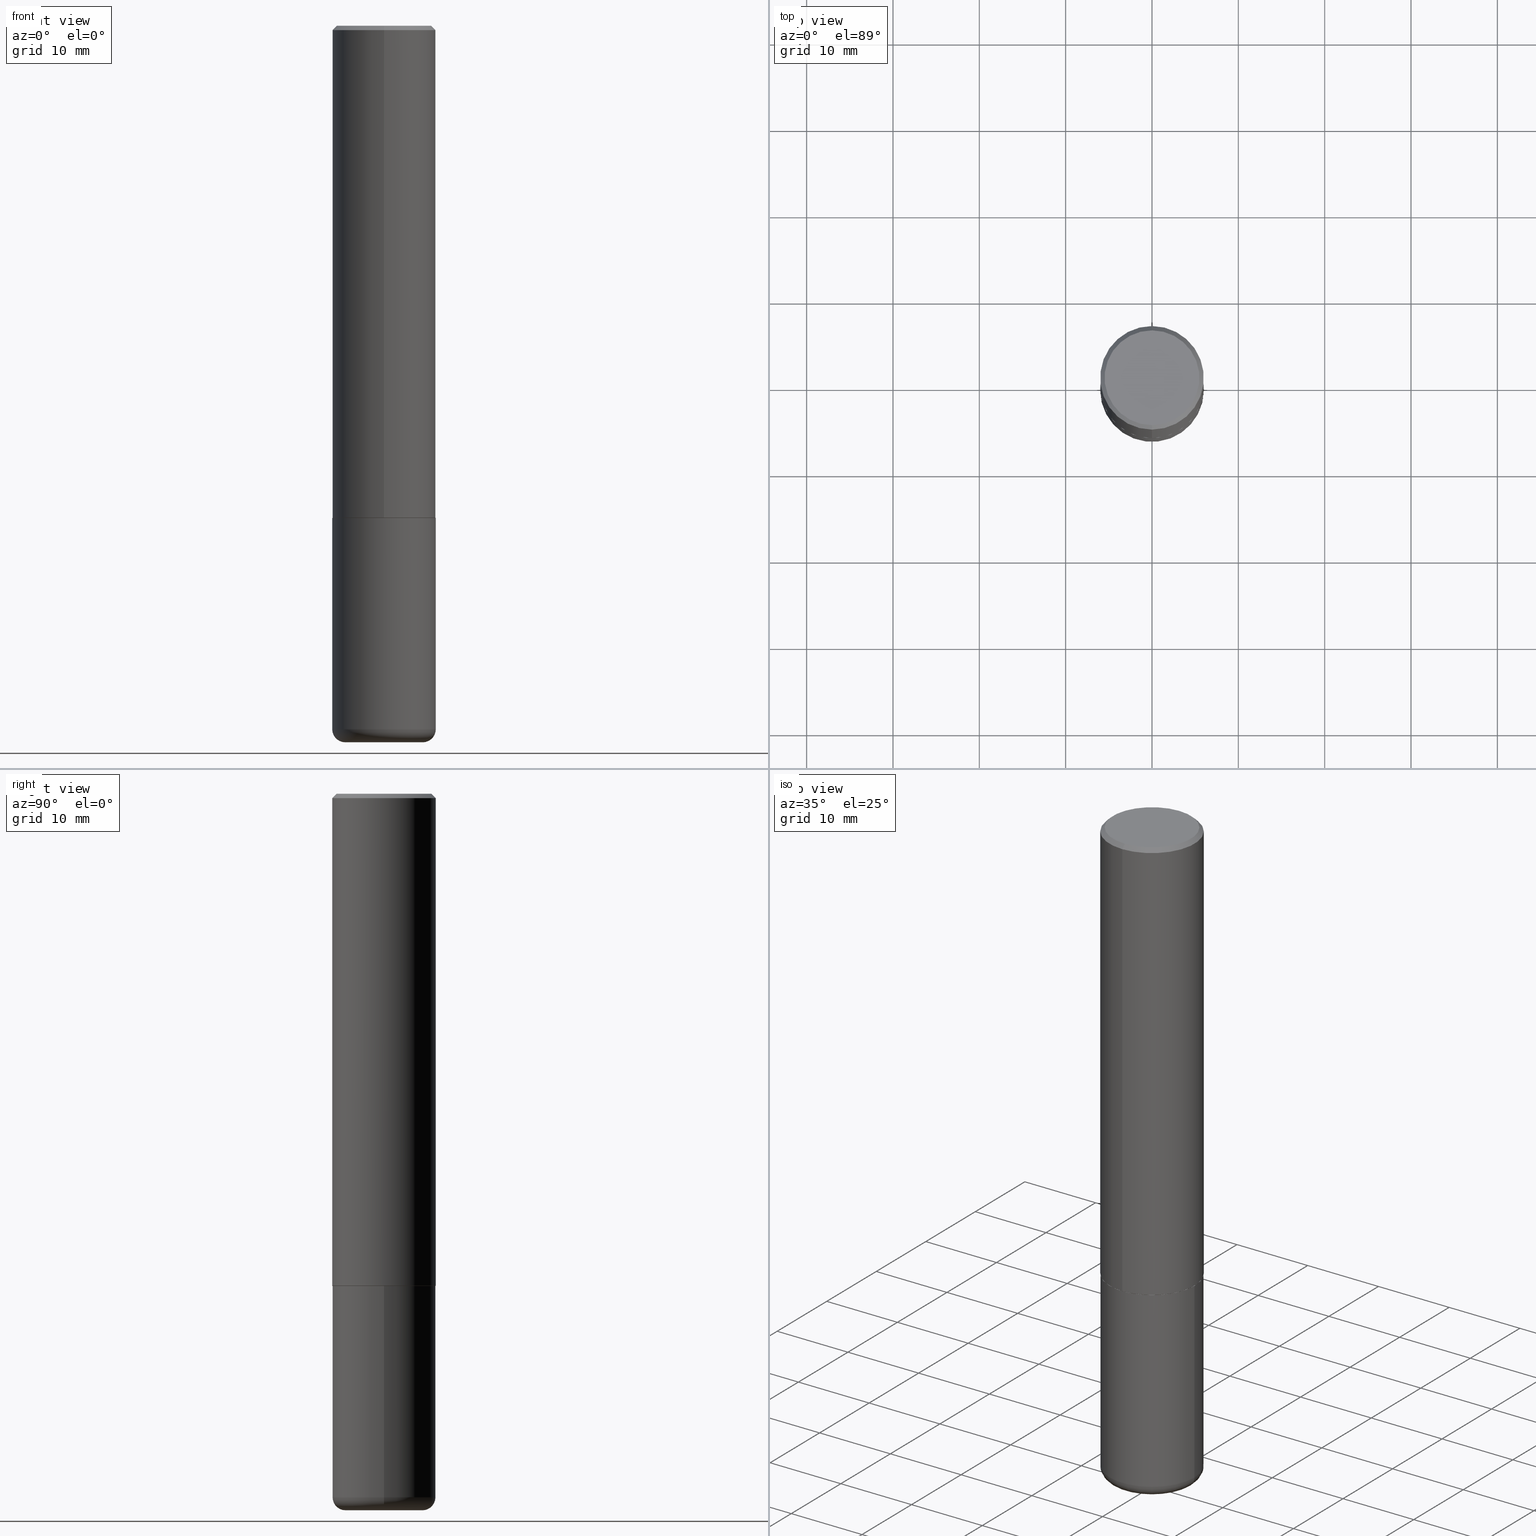
[diagram: canonical four-view strip — front | top / right | iso, engineering-drawing reading convention]
A machine part, canonical four-view strip (front | top / right | iso — engineering-drawing reading convention). The complete STEP part file that produces these views, byte-faithful:
ISO-10303-21;
HEADER;
FILE_DESCRIPTION (( 'STEP AP203' ),
    '1' );
FILE_NAME ('46218.STEP',
    '2024-03-04T19:49:00',
    ( '' ),
    ( '' ),
    'SwSTEP 2.0',
    'SolidWorks 2023',
    '' );
FILE_SCHEMA (( 'CONFIG_CONTROL_DESIGN' ));
ENDSEC;

DATA;
#1 = DIRECTION ( 'NONE',  ( -2.445468806185136877E-29, 3.491481338843145188E-15, 1.000000000000000000 ) ) ;
#2 = CIRCLE ( 'NONE', #391, 0.2362000000000000210 ) ;
#3 = EDGE_CURVE ( 'NONE', #51, #171, #136, .T. ) ;
#4 = CC_DESIGN_DATE_AND_TIME_ASSIGNMENT ( #336, #399, ( #352 ) ) ;
#5 = SECURITY_CLASSIFICATION_LEVEL ( 'unclassified' ) ;
#6 = CARTESIAN_POINT ( 'NONE',  ( -3.161204365203424069E-46, 4.514835099746631820E-32, 1.292888895126931146E-17 ) ) ;
#7 = AXIS2_PLACEMENT_3D ( 'NONE', #313, #120, #277 ) ;
#8 = AXIS2_PLACEMENT_3D ( 'NONE', #83, #178, #42 ) ;
#9 = DATE_AND_TIME ( #237, #234 ) ;
#10 = APPROVAL_PERSON_ORGANIZATION ( #49, #280, #272 ) ;
#11 = FACE_OUTER_BOUND ( 'NONE', #86, .T. ) ;
#12 = VERTEX_POINT ( 'NONE', #412 ) ;
#13 = SHAPE_DEFINITION_REPRESENTATION ( #73, #114 ) ;
#14 = ORIENTED_EDGE ( 'NONE', *, *, #65, .F. ) ;
#15 = FACE_OUTER_BOUND ( 'NONE', #150, .T. ) ;
#16 = EDGE_CURVE ( 'NONE', #304, #255, #306, .T. ) ;
#17 = AXIS2_PLACEMENT_3D ( 'NONE', #76, #243, #271 ) ;
#18 = CC_DESIGN_APPROVAL ( #280, ( #381 ) ) ;
#19 = CARTESIAN_POINT ( 'NONE',  ( 5.486982479849156345E-29, -7.836513628919922560E-15, -2.244100000000000428 ) ) ;
#20 = VERTEX_POINT ( 'NONE', #377 ) ;
#21 = FACE_OUTER_BOUND ( 'NONE', #145, .T. ) ;
#22 = EDGE_LOOP ( 'NONE', ( #319, #383, #142, #249 ) ) ;
#23 = APPLICATION_CONTEXT ( 'configuration controlled 3d designs of mechanical parts and assemblies' ) ;
#24 = DIRECTION ( 'NONE',  ( -2.445070397865137478E-29, 3.492051882233377311E-15, 1.000000000000000000 ) ) ;
#25 = DIRECTION ( 'NONE',  ( -2.445468806185136597E-29, 3.491481338843145583E-15, 1.000000000000000000 ) ) ;
#26 = CIRCLE ( 'NONE', #264, 0.2362000000000000766 ) ;
#27 = DIRECTION ( 'NONE',  ( 1.000000000000000000, -6.982962677686266711E-15, 4.876176775795936353E-29 ) ) ;
#28 = CARTESIAN_POINT ( 'NONE',  ( -0.1764000000000000012, -9.946925600994110777E-15, -3.207900000000000418 ) ) ;
#29 = CARTESIAN_POINT ( 'NONE',  ( 7.991058417971171713E-29, -1.140911357093774644E-14, -3.267700000000000049 ) ) ;
#30 = ORIENTED_EDGE ( 'NONE', *, *, #180, .F. ) ;
#31 = EDGE_CURVE ( 'NONE', #12, #394, #231, .T. ) ;
#32 =( NAMED_UNIT ( * ) PLANE_ANGLE_UNIT ( ) SI_UNIT ( $, .RADIAN. ) );
#33 = PERSON_AND_ORGANIZATION ( #417, #282 ) ;
#34 = EDGE_CURVE ( 'NONE', #171, #211, #96, .T. ) ;
#35 = DIRECTION ( 'NONE',  ( -2.445468806185136597E-29, 3.491481338843145583E-15, 1.000000000000000000 ) ) ;
#36 = VECTOR ( 'NONE', #141, 39.37007874015748143 ) ;
#37 = APPROVAL_DATE_TIME ( #9, #265 ) ;
#38 = DIRECTION ( 'NONE',  ( 2.445070397865137758E-29, -3.492051882233377311E-15, -1.000000000000000000 ) ) ;
#39 = PERSON_AND_ORGANIZATION_ROLE ( 'classification_officer' ) ;
#40 = ADVANCED_FACE ( 'NONE', ( #194 ), #403, .T. ) ;
#41 = CARTESIAN_POINT ( 'NONE',  ( 7.844819383361301131E-29, -1.120032298687492830E-14, -3.207900000000000418 ) ) ;
#42 = DIRECTION ( 'NONE',  ( -6.982962677686265922E-15, -1.000000000000000000, 3.492051882233377311E-15 ) ) ;
#43 = ORIENTED_EDGE ( 'NONE', *, *, #373, .F. ) ;
#44 = PERSON_AND_ORGANIZATION ( #417, #282 ) ;
#45 = DIRECTION ( 'NONE',  ( 6.982962677686265922E-15, 1.000000000000000000, -3.492051882233377311E-15 ) ) ;
#46 = ADVANCED_FACE ( 'NONE', ( #15 ), #238, .T. ) ;
#47 = EDGE_LOOP ( 'NONE', ( #409, #343 ) ) ;
#48 = EDGE_CURVE ( 'NONE', #171, #51, #233, .T. ) ;
#49 = PERSON_AND_ORGANIZATION ( #417, #282 ) ;
#50 = DIRECTION ( 'NONE',  ( -2.445468806185136597E-29, 3.491481338843145583E-15, 1.000000000000000000 ) ) ;
#51 = VERTEX_POINT ( 'NONE', #273 ) ;
#52 = VECTOR ( 'NONE', #254, 39.37007874015748854 ) ;
#53 = LINE ( 'NONE', #183, #52 ) ;
#54 = ORIENTED_EDGE ( 'NONE', *, *, #402, .T. ) ;
#55 = CARTESIAN_POINT ( 'NONE',  ( -0.2361999999999999378, -9.522021045009570331E-15, -3.207900000000000418 ) ) ;
#56 = ORIENTED_EDGE ( 'NONE', *, *, #107, .F. ) ;
#57 = CYLINDRICAL_SURFACE ( 'NONE', #126, 0.2361999999999999933 ) ;
#58 = ORIENTED_EDGE ( 'NONE', *, *, #107, .T. ) ;
#59 = CARTESIAN_POINT ( 'NONE',  ( 1.671196514507810212E-15, 0.2351999999999921653, -2.244100000000000872 ) ) ;
#60 = CIRCLE ( 'NONE', #314, 0.2362000000000000210 ) ;
#61 = ORIENTED_EDGE ( 'NONE', *, *, #328, .F. ) ;
#62 = LOCAL_TIME ( 14, 49, 0.000000000000000000, #210 ) ;
#63 = CARTESIAN_POINT ( 'NONE',  ( -1.551844647095920339E-15, -0.2162000000000000033, 7.679105058901254966E-16 ) ) ;
#64 = EDGE_CURVE ( 'NONE', #211, #255, #299, .T. ) ;
#65 = EDGE_CURVE ( 'NONE', #20, #289, #379, .T. ) ;
#66 = DIRECTION ( 'NONE',  ( -2.445070397865137758E-29, 3.492051882233377311E-15, 1.000000000000000000 ) ) ;
#67 = DIRECTION ( 'NONE',  ( -4.937700262165053702E-15, -0.7071067811866175168, 0.7071067811864775177 ) ) ;
#68 = DIRECTION ( 'NONE',  ( -2.445070397865137758E-29, 3.492051882233377311E-15, 1.000000000000000000 ) ) ;
#69 = DIRECTION ( 'NONE',  ( -2.445070397865137758E-29, 3.492051882233377311E-15, 1.000000000000000000 ) ) ;
#70 = AXIS2_PLACEMENT_3D ( 'NONE', #189, #90, #157 ) ;
#71 = CARTESIAN_POINT ( 'NONE',  ( 0.000000000000000000, 0.000000000000000000, 0.000000000000000000 ) ) ;
#72 = ADVANCED_FACE ( 'NONE', ( #11 ), #349, .T. ) ;
#73 = PRODUCT_DEFINITION_SHAPE ( 'NONE', 'NONE',  #352 ) ;
#74 = ORIENTED_EDGE ( 'NONE', *, *, #286, .T. ) ;
#75 = DATE_AND_TIME ( #303, #200 ) ;
#76 = CARTESIAN_POINT ( 'NONE',  ( 0.000000000000000000, 0.000000000000000000, 0.000000000000000000 ) ) ;
#77 = EDGE_LOOP ( 'NONE', ( #416, #192, #82, #186 ) ) ;
#78 = VECTOR ( 'NONE', #67, 39.37007874015748143 ) ;
#79 = CC_DESIGN_SECURITY_CLASSIFICATION ( #127, ( #381 ) ) ;
#80 = DIRECTION ( 'NONE',  ( -2.445070397865137758E-29, 3.492051882233377311E-15, 1.000000000000000000 ) ) ;
#81 = EDGE_CURVE ( 'NONE', #240, #345, #87, .T. ) ;
#82 = ORIENTED_EDGE ( 'NONE', *, *, #388, .T. ) ;
#83 = CARTESIAN_POINT ( 'NONE',  ( 0.000000000000000000, 0.000000000000000000, 0.000000000000000000 ) ) ;
#84 = VERTEX_POINT ( 'NONE', #149 ) ;
#85 = DIRECTION ( 'NONE',  ( -1.000000000000000000, 6.982962677686265922E-15, -4.876176775795935793E-29 ) ) ;
#86 = EDGE_LOOP ( 'NONE', ( #260, #244, #332, #398 ) ) ;
#87 = CIRCLE ( 'NONE', #250, 0.2351999999999999924 ) ;
#88 = DIRECTION ( 'NONE',  ( -2.445070397865137758E-29, 3.492051882233377311E-15, 1.000000000000000000 ) ) ;
#89 = EDGE_LOOP ( 'NONE', ( #285, #58, #226, #179 ) ) ;
#90 = DIRECTION ( 'NONE',  ( -2.445070397865137758E-29, 3.492051882233377311E-15, 1.000000000000000000 ) ) ;
#91 = ORIENTED_EDGE ( 'NONE', *, *, #259, .T. ) ;
#92 = CARTESIAN_POINT ( 'NONE',  ( 5.484537409451290549E-29, -7.833021577037690175E-15, -2.243100000000000094 ) ) ;
#93 = DIRECTION ( 'NONE',  ( -2.445070397865137758E-29, 3.492051882233377311E-15, 1.000000000000000000 ) ) ;
#94 = DIRECTION ( 'NONE',  ( 2.438088387897960049E-29, -3.491481338843145188E-15, -1.000000000000000000 ) ) ;
#95 = ADVANCED_FACE ( 'NONE', ( #337 ), #112, .T. ) ;
#96 = CIRCLE ( 'NONE', #331, 0.05979999999999986715 ) ;
#97 = EDGE_LOOP ( 'NONE', ( #162, #113, #140, #115 ) ) ;
#98 = AXIS2_PLACEMENT_3D ( 'NONE', #356, #66, #168 ) ;
#99 = APPROVAL_DATE_TIME ( #258, #253 ) ;
#100 = EDGE_LOOP ( 'NONE', ( #177, #219 ) ) ;
#101 = MECHANICAL_CONTEXT ( 'NONE', #23, 'mechanical' ) ;
#102 = DIRECTION ( 'NONE',  ( 1.000000000000000000, -6.982962677686269077E-15, 4.883557194083113462E-29 ) ) ;
#103 = AXIS2_PLACEMENT_3D ( 'NONE', #164, #35, #102 ) ;
#104 = APPROVAL_PERSON_ORGANIZATION ( #242, #265, #203 ) ;
#105 = APPROVAL_STATUS ( 'not_yet_approved' ) ;
#106 = PERSON_AND_ORGANIZATION_ROLE ( 'creator' ) ;
#107 = EDGE_CURVE ( 'NONE', #394, #364, #396, .T. ) ;
#108 = CIRCLE ( 'NONE', #340, 0.2361999999999999933 ) ;
#109 = DIRECTION ( 'NONE',  ( -2.445070397865137758E-29, 3.492051882233377311E-15, 1.000000000000000000 ) ) ;
#110 = ORIENTED_EDGE ( 'NONE', *, *, #65, .T. ) ;
#111 = FACE_OUTER_BOUND ( 'NONE', #173, .T. ) ;
#112 = CYLINDRICAL_SURFACE ( 'NONE', #294, 0.2362000000000001598 ) ;
#113 = ORIENTED_EDGE ( 'NONE', *, *, #212, .T. ) ;
#114 = ADVANCED_BREP_SHAPE_REPRESENTATION ( '46218', ( #121, #124, #410 ), #148 ) ;
#115 = ORIENTED_EDGE ( 'NONE', *, *, #402, .F. ) ;
#116 = DIRECTION ( 'NONE',  ( -2.445468806185136597E-29, 3.491481338843145583E-15, 1.000000000000000000 ) ) ;
#117 = DIRECTION ( 'NONE',  ( 1.000000000000000000, -6.982962677686260400E-15, 0.000000000000000000 ) ) ;
#118 = CARTESIAN_POINT ( 'NONE',  ( -1.649375784469497117E-15, -0.2362000000000001598, 8.248226545835243120E-16 ) ) ;
#119 = CARTESIAN_POINT ( 'NONE',  ( 4.890140795730287848E-31, -6.984103764466771238E-17, -0.02000000000000005246 ) ) ;
#120 = DIRECTION ( 'NONE',  ( -2.445468806185136597E-29, 3.491481338843145583E-15, 1.000000000000000000 ) ) ;
#121 = MANIFOLD_SOLID_BREP ( 'Body-Move/Copy2[1]', #322 ) ;
#122 = LINE ( 'NONE', #59, #257 ) ;
#123 = DIRECTION ( 'NONE',  ( -1.000000000000000000, 7.105427357601017636E-15, 0.000000000000000000 ) ) ;
#124 = MANIFOLD_SOLID_BREP ( 'Body-Move/Copy2[2]', #400 ) ;
#125 = AXIS2_PLACEMENT_3D ( 'NONE', #310, #93, #223 ) ;
#126 = AXIS2_PLACEMENT_3D ( 'NONE', #155, #25, #27 ) ;
#127 = SECURITY_CLASSIFICATION ( '', '', #5 ) ;
#128 = EDGE_LOOP ( 'NONE', ( #110, #338 ) ) ;
#129 = CARTESIAN_POINT ( 'NONE',  ( -1.642392821791754699E-15, -0.2352000000000078195, -2.244099999999999540 ) ) ;
#130 = LINE ( 'NONE', #227, #385 ) ;
#131 = AXIS2_PLACEMENT_3D ( 'NONE', #397, #334, #45 ) ;
#132 = CC_DESIGN_APPROVAL ( #265, ( #127 ) ) ;
#133 = DATE_TIME_ROLE ( 'classification_date' ) ;
#134 = CARTESIAN_POINT ( 'NONE',  ( 1.678301941865357577E-15, 0.2362000000000001598, -8.248226545835243120E-16 ) ) ;
#135 = EDGE_CURVE ( 'NONE', #84, #211, #60, .T. ) ;
#136 = CIRCLE ( 'NONE', #195, 0.1764000000000000012 ) ;
#137 = AXIS2_PLACEMENT_3D ( 'NONE', #6, #393, #362 ) ;
#138 = PRODUCT ( '46218', '46218', '', ( #101 ) ) ;
#139 = DIRECTION ( 'NONE',  ( -2.445070397865137758E-29, 3.492051882233377311E-15, 1.000000000000000000 ) ) ;
#140 = ORIENTED_EDGE ( 'NONE', *, *, #31, .F. ) ;
#141 = DIRECTION ( 'NONE',  ( -2.445468806185136877E-29, 3.491481338843145188E-15, 1.000000000000000000 ) ) ;
#142 = ORIENTED_EDGE ( 'NONE', *, *, #198, .T. ) ;
#143 = PRODUCT_RELATED_PRODUCT_CATEGORY ( 'detail', '', ( #138 ) ) ;
#144 = CARTESIAN_POINT ( 'NONE',  ( 7.991058417971171713E-29, -1.140911357093774644E-14, -3.267700000000000049 ) ) ;
#145 = EDGE_LOOP ( 'NONE', ( #316, #74, #274, #61 ) ) ;
#146 = CIRCLE ( 'NONE', #290, 0.2351999999999999924 ) ;
#147 = VECTOR ( 'NONE', #109, 39.37007874015748143 ) ;
#148 =( GEOMETRIC_REPRESENTATION_CONTEXT ( 3 ) GLOBAL_UNCERTAINTY_ASSIGNED_CONTEXT ( ( #269 ) ) GLOBAL_UNIT_ASSIGNED_CONTEXT ( ( #262, #32, #387 ) ) REPRESENTATION_CONTEXT ( 'NONE', 'WORKASPACE' ) );
#149 = CARTESIAN_POINT ( 'NONE',  ( 0.2361999999999999378, -1.284969877134442325E-14, -3.207900000000000418 ) ) ;
#150 = EDGE_LOOP ( 'NONE', ( #275, #14, #301, #91 ) ) ;
#151 = FACE_OUTER_BOUND ( 'NONE', #205, .T. ) ;
#152 = DIMENSIONAL_EXPONENTS ( 1.000000000000000000, 0.000000000000000000, 0.000000000000000000, 0.000000000000000000, 0.000000000000000000, 0.000000000000000000, 0.000000000000000000 ) ;
#153 = ADVANCED_FACE ( 'NONE', ( #111 ), #365, .T. ) ;
#154 = EDGE_LOOP ( 'NONE', ( #56, #268, #351, #335 ) ) ;
#155 = CARTESIAN_POINT ( 'NONE',  ( 0.000000000000000000, 0.000000000000000000, 0.000000000000000000 ) ) ;
#156 = VECTOR ( 'NONE', #350, 39.37007874015748854 ) ;
#157 = DIRECTION ( 'NONE',  ( -6.982962677686265922E-15, -1.000000000000000000, 3.487819265831410167E-15 ) ) ;
#158 = ADVANCED_FACE ( 'NONE', ( #208 ), #302, .F. ) ;
#159 = DIRECTION ( 'NONE',  ( 2.445070397865137758E-29, -3.492051882233377311E-15, -1.000000000000000000 ) ) ;
#160 = DIRECTION ( 'NONE',  ( 7.105427357601001859E-15, 1.000000000000000000, -3.491481338843145583E-15 ) ) ;
#161 = CARTESIAN_POINT ( 'NONE',  ( 5.486982479849156345E-29, -7.836513628919922560E-15, -2.244100000000000428 ) ) ;
#162 = ORIENTED_EDGE ( 'NONE', *, *, #81, .T. ) ;
#163 = CARTESIAN_POINT ( 'NONE',  ( 0.000000000000000000, 0.000000000000000000, 0.000000000000000000 ) ) ;
#164 = CARTESIAN_POINT ( 'NONE',  ( 7.844819383361301131E-29, -1.120032298687492830E-14, -3.207900000000000418 ) ) ;
#165 = DIRECTION ( 'NONE',  ( -6.982962677686265922E-15, -1.000000000000000000, 3.487819265831410167E-15 ) ) ;
#166 = AXIS2_PLACEMENT_3D ( 'NONE', #175, #38, #241 ) ;
#167 = ADVANCED_FACE ( 'NONE', ( #256 ), #404, .T. ) ;
#168 = DIRECTION ( 'NONE',  ( -6.982962677686265133E-15, -1.000000000000000000, 3.484499991918703113E-15 ) ) ;
#169 = CC_DESIGN_PERSON_AND_ORGANIZATION_ASSIGNMENT ( #44, #201, ( #381 ) ) ;
#170 = DIRECTION ( 'NONE',  ( -6.982962677686265922E-15, -1.000000000000000000, 3.492051882233377311E-15 ) ) ;
#171 = VERTEX_POINT ( 'NONE', #346 ) ;
#172 = DIRECTION ( 'NONE',  ( 1.000000000000000000, -6.982962677686264344E-15, 0.000000000000000000 ) ) ;
#173 = EDGE_LOOP ( 'NONE', ( #215, #375, #368, #43 ) ) ;
#174 = AXIS2_PLACEMENT_3D ( 'NONE', #276, #357, #324 ) ;
#175 = CARTESIAN_POINT ( 'NONE',  ( 4.890140795730287848E-31, -6.984103764466771238E-17, -0.02000000000000005246 ) ) ;
#176 = APPROVAL_STATUS ( 'not_yet_approved' ) ;
#177 = ORIENTED_EDGE ( 'NONE', *, *, #16, .T. ) ;
#178 = DIRECTION ( 'NONE',  ( -2.445070397865137758E-29, 3.492051882233377311E-15, 1.000000000000000000 ) ) ;
#179 = ORIENTED_EDGE ( 'NONE', *, *, #213, .F. ) ;
#180 = EDGE_CURVE ( 'NONE', #345, #240, #146, .T. ) ;
#181 = AXIS2_PLACEMENT_3D ( 'NONE', #288, #220, #117 ) ;
#182 = ADVANCED_FACE ( 'NONE', ( #251 ), #407, .F. ) ;
#183 = CARTESIAN_POINT ( 'NONE',  ( -1.620449627073635473E-15, -0.2362000000000001321, -0.01999999999999922673 ) ) ;
#184 = DIRECTION ( 'NONE',  ( 1.000000000000000000, -6.982962677686271444E-15, 0.000000000000000000 ) ) ;
#185 = DIRECTION ( 'NONE',  ( 5.024295867788576727E-15, 0.7071067811866224018, 0.7071067811864726327 ) ) ;
#186 = ORIENTED_EDGE ( 'NONE', *, *, #297, .F. ) ;
#187 = DIRECTION ( 'NONE',  ( -1.000000000000000000, 6.982962677686265922E-15, -4.876176775795935793E-29 ) ) ;
#188 = DIRECTION ( 'NONE',  ( -2.445468806185136597E-29, 3.491481338843145583E-15, 1.000000000000000000 ) ) ;
#189 = CARTESIAN_POINT ( 'NONE',  ( 4.890140795730287848E-31, -6.984103764466771238E-17, -0.02000000000000005246 ) ) ;
#190 = APPLICATION_CONTEXT ( 'configuration controlled 3d designs of mechanical parts and assemblies' ) ;
#191 = DIRECTION ( 'NONE',  ( 6.982962677686265922E-15, 1.000000000000000000, -3.487819265831410167E-15 ) ) ;
#192 = ORIENTED_EDGE ( 'NONE', *, *, #327, .T. ) ;
#193 = DIRECTION ( 'NONE',  ( 1.000000000000000000, 0.000000000000000000, 0.000000000000000000 ) ) ;
#194 = FACE_OUTER_BOUND ( 'NONE', #154, .T. ) ;
#195 = AXIS2_PLACEMENT_3D ( 'NONE', #228, #188, #184 ) ;
#196 = LINE ( 'NONE', #129, #78 ) ;
#197 = FACE_OUTER_BOUND ( 'NONE', #22, .T. ) ;
#198 = EDGE_CURVE ( 'NONE', #51, #84, #209, .T. ) ;
#199 = AXIS2_PLACEMENT_3D ( 'NONE', #278, #214, #187 ) ;
#200 = LOCAL_TIME ( 14, 49, 0.000000000000000000, #239 ) ;
#201 = PERSON_AND_ORGANIZATION_ROLE ( 'creator' ) ;
#202 = DIRECTION ( 'NONE',  ( -6.982962677686265133E-15, -1.000000000000000000, 3.484499991918703113E-15 ) ) ;
#203 = APPROVAL_ROLE ( '' ) ;
#204 = DIRECTION ( 'NONE',  ( -2.445468806185136597E-29, 3.491481338843145583E-15, 1.000000000000000000 ) ) ;
#205 = EDGE_LOOP ( 'NONE', ( #347, #406, #54, #279 ) ) ;
#206 = COORDINATED_UNIVERSAL_TIME_OFFSET ( 5, 0, .BEHIND. ) ;
#207 = CC_DESIGN_PERSON_AND_ORGANIZATION_ASSIGNMENT ( #389, #229, ( #138 ) ) ;
#208 = FACE_OUTER_BOUND ( 'NONE', #128, .T. ) ;
#209 = CIRCLE ( 'NONE', #181, 0.05979999999999986715 ) ;
#210 = COORDINATED_UNIVERSAL_TIME_OFFSET ( 5, 0, .BEHIND. ) ;
#211 = VERTEX_POINT ( 'NONE', #55 ) ;
#212 = EDGE_CURVE ( 'NONE', #345, #394, #122, .T. ) ;
#213 = EDGE_CURVE ( 'NONE', #12, #221, #411, .T. ) ;
#214 = DIRECTION ( 'NONE',  ( 2.438088387897960049E-29, -3.491481338843145188E-15, -1.000000000000000000 ) ) ;
#215 = ORIENTED_EDGE ( 'NONE', *, *, #135, .T. ) ;
#216 = CIRCLE ( 'NONE', #323, 0.2362000000000002709 ) ;
#217 = CC_DESIGN_APPROVAL ( #253, ( #352 ) ) ;
#218 = DIRECTION ( 'NONE',  ( -2.445468806185136597E-29, 3.491481338843145583E-15, 1.000000000000000000 ) ) ;
#219 = ORIENTED_EDGE ( 'NONE', *, *, #328, .T. ) ;
#220 = DIRECTION ( 'NONE',  ( -6.982962677686266711E-15, -1.000000000000000000, 3.491481338843145583E-15 ) ) ;
#221 = VERTEX_POINT ( 'NONE', #248 ) ;
#222 = DIRECTION ( 'NONE',  ( -2.445070397865137758E-29, 3.492051882233377311E-15, 1.000000000000000000 ) ) ;
#223 = DIRECTION ( 'NONE',  ( -6.982962677686265922E-15, -1.000000000000000000, 3.469747663417773058E-15 ) ) ;
#224 = AXIS2_PLACEMENT_3D ( 'NONE', #29, #94, #85 ) ;
#225 = DIRECTION ( 'NONE',  ( 1.000000000000000000, -6.982962677686264344E-15, 0.000000000000000000 ) ) ;
#226 = ORIENTED_EDGE ( 'NONE', *, *, #388, .F. ) ;
#227 = CARTESIAN_POINT ( 'NONE',  ( 0.2361999999999999933, -1.649375784469496131E-15, 1.151752954443000088E-29 ) ) ;
#228 = CARTESIAN_POINT ( 'NONE',  ( 7.991058417971171713E-29, -1.140911357093774644E-14, -3.267700000000000049 ) ) ;
#229 = PERSON_AND_ORGANIZATION_ROLE ( 'design_owner' ) ;
#230 = CC_DESIGN_PERSON_AND_ORGANIZATION_ASSIGNMENT ( #361, #39, ( #127 ) ) ;
#231 = CIRCLE ( 'NONE', #125, 0.2362000000000002709 ) ;
#232 = FACE_OUTER_BOUND ( 'NONE', #97, .T. ) ;
#233 = CIRCLE ( 'NONE', #266, 0.1764000000000000012 ) ;
#234 = LOCAL_TIME ( 14, 49, 0.000000000000000000, #206 ) ;
#235 = CALENDAR_DATE ( 2024, 4, 3 ) ;
#236 = APPROVAL_ROLE ( '' ) ;
#237 = CALENDAR_DATE ( 2024, 4, 3 ) ;
#238 = CONICAL_SURFACE ( 'NONE', #166, 0.2362000000000000766, 0.7853981633974481680 ) ;
#239 = COORDINATED_UNIVERSAL_TIME_OFFSET ( 5, 0, .BEHIND. ) ;
#240 = VERTEX_POINT ( 'NONE', #374 ) ;
#241 = DIRECTION ( 'NONE',  ( 6.982962677686265922E-15, 1.000000000000000000, -3.487819265831410167E-15 ) ) ;
#242 = PERSON_AND_ORGANIZATION ( #417, #282 ) ;
#243 = DIRECTION ( 'NONE',  ( -2.445468806185136597E-29, 3.491481338843145583E-15, 1.000000000000000000 ) ) ;
#244 = ORIENTED_EDGE ( 'NONE', *, *, #34, .T. ) ;
#245 = VECTOR ( 'NONE', #88, 39.37007874015748143 ) ;
#246 = DIRECTION ( 'NONE',  ( 1.000000000000000000, -6.982962677686269077E-15, 4.883557194083113462E-29 ) ) ;
#247 = FACE_OUTER_BOUND ( 'NONE', #252, .T. ) ;
#248 = CARTESIAN_POINT ( 'NONE',  ( -1.620449627073635473E-15, -0.2362000000000001321, -0.01999999999999922673 ) ) ;
#249 = ORIENTED_EDGE ( 'NONE', *, *, #286, .F. ) ;
#250 = AXIS2_PLACEMENT_3D ( 'NONE', #19, #139, #202 ) ;
#251 = FACE_OUTER_BOUND ( 'NONE', #100, .T. ) ;
#252 = EDGE_LOOP ( 'NONE', ( #372, #30 ) ) ;
#253 = APPROVAL ( #105, 'UNSPECIFIED' ) ;
#254 = DIRECTION ( 'NONE',  ( -4.851104656540962697E-15, -0.7071067811865497932, -0.7071067811865451302 ) ) ;
#255 = VERTEX_POINT ( 'NONE', #311 ) ;
#256 = FACE_OUTER_BOUND ( 'NONE', #47, .T. ) ;
#257 = VECTOR ( 'NONE', #185, 39.37007874015748143 ) ;
#258 = DATE_AND_TIME ( #235, #386 ) ;
#259 = EDGE_CURVE ( 'NONE', #364, #221, #367, .T. ) ;
#260 = ORIENTED_EDGE ( 'NONE', *, *, #3, .T. ) ;
#261 = LENGTH_MEASURE_WITH_UNIT ( LENGTH_MEASURE( 0.02539999999999999897 ), #263 );
#262 =( CONVERSION_BASED_UNIT ( 'INCH', #261 ) LENGTH_UNIT ( ) NAMED_UNIT ( #152 ) );
#263 =( LENGTH_UNIT ( ) NAMED_UNIT ( * ) SI_UNIT ( $, .METRE. ) );
#264 = AXIS2_PLACEMENT_3D ( 'NONE', #353, #68, #165 ) ;
#265 = APPROVAL ( #298, 'UNSPECIFIED' ) ;
#266 = AXIS2_PLACEMENT_3D ( 'NONE', #144, #204, #369 ) ;
#267 = DIRECTION ( 'NONE',  ( -2.445468806185136597E-29, 3.491481338843145583E-15, 1.000000000000000000 ) ) ;
#268 = ORIENTED_EDGE ( 'NONE', *, *, #348, .T. ) ;
#269 = UNCERTAINTY_MEASURE_WITH_UNIT (LENGTH_MEASURE( 1.000000000000000082E-05 ), #262, 'distance_accuracy_value', 'NONE');
#270 = CALENDAR_DATE ( 2024, 4, 3 ) ;
#271 = DIRECTION ( 'NONE',  ( 1.000000000000000000, -6.982962677686266711E-15, 4.876176775795936353E-29 ) ) ;
#272 = APPROVAL_ROLE ( '' ) ;
#273 = CARTESIAN_POINT ( 'NONE',  ( 0.1764000000000000012, -1.264090818728160511E-14, -3.267700000000000049 ) ) ;
#274 = ORIENTED_EDGE ( 'NONE', *, *, #373, .T. ) ;
#275 = ORIENTED_EDGE ( 'NONE', *, *, #327, .F. ) ;
#276 = CARTESIAN_POINT ( 'NONE',  ( 5.486982479849156345E-29, -7.836513628919922560E-15, -2.244100000000000428 ) ) ;
#277 = DIRECTION ( 'NONE',  ( 1.000000000000000000, -6.982962677686269077E-15, 0.000000000000000000 ) ) ;
#278 = CARTESIAN_POINT ( 'NONE',  ( 5.487876547960065873E-29, -7.835233272497903917E-15, -2.244100000000000428 ) ) ;
#279 = ORIENTED_EDGE ( 'NONE', *, *, #348, .F. ) ;
#280 = APPROVAL ( #176, 'UNSPECIFIED' ) ;
#281 = AXIS2_PLACEMENT_3D ( 'NONE', #344, #24, #315 ) ;
#282 = ORGANIZATION ( 'UNSPECIFIED', 'UNSPECIFIED', '' ) ;
#283 = CARTESIAN_POINT ( 'NONE',  ( 0.2361999999999999933, -9.484609056967400443E-15, -2.244100000000000428 ) ) ;
#284 = CARTESIAN_POINT ( 'NONE',  ( 5.487876547960065873E-29, -7.835233272497903917E-15, -2.244100000000000428 ) ) ;
#285 = ORIENTED_EDGE ( 'NONE', *, *, #31, .T. ) ;
#286 = EDGE_CURVE ( 'NONE', #211, #84, #2, .T. ) ;
#287 = ADVANCED_FACE ( 'NONE', ( #247 ), #312, .F. ) ;
#288 = CARTESIAN_POINT ( 'NONE',  ( 0.1764000000000000012, -1.243211760321878697E-14, -3.207900000000000418 ) ) ;
#289 = VERTEX_POINT ( 'NONE', #63 ) ;
#290 = AXIS2_PLACEMENT_3D ( 'NONE', #161, #342, #414 ) ;
#291 = CONICAL_SURFACE ( 'NONE', #98, 0.2351999999999999924, 0.7853981633975507526 ) ;
#292 = CARTESIAN_POINT ( 'NONE',  ( 1.649375784469496920E-15, 0.2361999999999999933, -0.02000000000000087472 ) ) ;
#293 = CARTESIAN_POINT ( 'NONE',  ( 1.678301941865385779E-15, 0.2361999999999924715, -2.243100000000000982 ) ) ;
#294 = AXIS2_PLACEMENT_3D ( 'NONE', #71, #80, #170 ) ;
#295 = CIRCLE ( 'NONE', #326, 0.2162000000000000033 ) ;
#296 = COORDINATED_UNIVERSAL_TIME_OFFSET ( 5, 0, .BEHIND. ) ;
#297 = EDGE_CURVE ( 'NONE', #20, #364, #339, .T. ) ;
#298 = APPROVAL_STATUS ( 'not_yet_approved' ) ;
#299 = LINE ( 'NONE', #305, #36 ) ;
#300 = ADVANCED_FACE ( 'NONE', ( #21 ), #57, .T. ) ;
#301 = ORIENTED_EDGE ( 'NONE', *, *, #297, .T. ) ;
#302 = PLANE ( 'NONE',  #131 ) ;
#303 = CALENDAR_DATE ( 2024, 4, 3 ) ;
#304 = VERTEX_POINT ( 'NONE', #283 ) ;
#305 = CARTESIAN_POINT ( 'NONE',  ( -0.2361999999999999933, 1.678301941865356591E-15, -1.161852468318208757E-29 ) ) ;
#306 = CIRCLE ( 'NONE', #7, 0.2361999999999999933 ) ;
#307 = CONICAL_SURFACE ( 'NONE', #418, 0.2362000000000000766, 0.7853981633974481680 ) ;
#308 = LOCAL_TIME ( 14, 49, 0.000000000000000000, #296 ) ;
#309 = DIRECTION ( 'NONE',  ( -6.982962677686265922E-15, -1.000000000000000000, 3.469747663417773058E-15 ) ) ;
#310 = CARTESIAN_POINT ( 'NONE',  ( 5.484537409451290549E-29, -7.833021577037690175E-15, -2.243100000000000094 ) ) ;
#311 = CARTESIAN_POINT ( 'NONE',  ( -0.2361999999999999933, -7.839476187821059716E-15, -2.244100000000000428 ) ) ;
#312 = PLANE ( 'NONE',  #281 ) ;
#313 = CARTESIAN_POINT ( 'NONE',  ( 5.487876547960065873E-29, -7.835233272497903917E-15, -2.244100000000000428 ) ) ;
#314 = AXIS2_PLACEMENT_3D ( 'NONE', #41, #267, #172 ) ;
#315 = DIRECTION ( 'NONE',  ( -6.982962677686265922E-15, -1.000000000000000000, 3.492051882233377311E-15 ) ) ;
#316 = ORIENTED_EDGE ( 'NONE', *, *, #64, .F. ) ;
#317 = ADVANCED_FACE ( 'NONE', ( #370 ), #307, .T. ) ;
#318 = CARTESIAN_POINT ( 'NONE',  ( 1.674749228186611702E-15, 0.2351999999999921653, -2.244100000000000872 ) ) ;
#319 = ORIENTED_EDGE ( 'NONE', *, *, #34, .F. ) ;
#320 = CC_DESIGN_PERSON_AND_ORGANIZATION_ASSIGNMENT ( #333, #330, ( #381 ) ) ;
#321 = APPLICATION_PROTOCOL_DEFINITION ( 'international standard', 'config_control_design', 1994, #190 ) ;
#322 = CLOSED_SHELL ( 'NONE', ( #153, #72, #182, #300, #360, #167 ) ) ;
#323 = AXIS2_PLACEMENT_3D ( 'NONE', #92, #222, #309 ) ;
#324 = DIRECTION ( 'NONE',  ( -6.982962677686265133E-15, -1.000000000000000000, 3.484499991918703113E-15 ) ) ;
#325 = APPLICATION_PROTOCOL_DEFINITION ( 'international standard', 'config_control_design', 1994, #23 ) ;
#326 = AXIS2_PLACEMENT_3D ( 'NONE', #358, #69, #382 ) ;
#327 = EDGE_CURVE ( 'NONE', #289, #221, #53, .T. ) ;
#328 = EDGE_CURVE ( 'NONE', #255, #304, #108, .T. ) ;
#329 = CALENDAR_DATE ( 2024, 4, 3 ) ;
#330 = PERSON_AND_ORGANIZATION_ROLE ( 'design_supplier' ) ;
#331 = AXIS2_PLACEMENT_3D ( 'NONE', #28, #160, #123 ) ;
#332 = ORIENTED_EDGE ( 'NONE', *, *, #135, .F. ) ;
#333 = PERSON_AND_ORGANIZATION ( #417, #282 ) ;
#334 = DIRECTION ( 'NONE',  ( 2.445070397865137478E-29, -3.492051882233377311E-15, -1.000000000000000000 ) ) ;
#335 = ORIENTED_EDGE ( 'NONE', *, *, #259, .F. ) ;
#336 = DATE_AND_TIME ( #270, #308 ) ;
#337 = FACE_OUTER_BOUND ( 'NONE', #89, .T. ) ;
#338 = ORIENTED_EDGE ( 'NONE', *, *, #413, .T. ) ;
#339 = LINE ( 'NONE', #378, #156 ) ;
#340 = AXIS2_PLACEMENT_3D ( 'NONE', #284, #218, #376 ) ;
#341 = DESIGN_CONTEXT ( 'detailed design', #190, 'design' ) ;
#342 = DIRECTION ( 'NONE',  ( -2.445070397865137758E-29, 3.492051882233377311E-15, 1.000000000000000000 ) ) ;
#343 = ORIENTED_EDGE ( 'NONE', *, *, #48, .F. ) ;
#344 = CARTESIAN_POINT ( 'NONE',  ( 5.486982479849156345E-29, -7.836513628919922560E-15, -2.244100000000000428 ) ) ;
#345 = VERTEX_POINT ( 'NONE', #318 ) ;
#346 = CARTESIAN_POINT ( 'NONE',  ( -0.1764000000000000012, -9.838868615033251990E-15, -3.267700000000000049 ) ) ;
#347 = ORIENTED_EDGE ( 'NONE', *, *, #212, .F. ) ;
#348 = EDGE_CURVE ( 'NONE', #394, #12, #216, .T. ) ;
#349 = TOROIDAL_SURFACE ( 'NONE', #380, 0.1764000000000000012, 0.05979999999999988103 ) ;
#350 = DIRECTION ( 'NONE',  ( 4.937700262164546464E-15, 0.7071067811865447972, -0.7071067811865500152 ) ) ;
#351 = ORIENTED_EDGE ( 'NONE', *, *, #213, .T. ) ;
#352 = PRODUCT_DEFINITION ( 'UNKNOWN', '', #381, #341 ) ;
#353 = CARTESIAN_POINT ( 'NONE',  ( 4.890140795730287848E-31, -6.984103764466771238E-17, -0.02000000000000005246 ) ) ;
#354 = PERSON_AND_ORGANIZATION ( #417, #282 ) ;
#355 = TOROIDAL_SURFACE ( 'NONE', #103, 0.1764000000000000012, 0.05979999999999988103 ) ;
#356 = CARTESIAN_POINT ( 'NONE',  ( 5.486982479849156345E-29, -7.836513628919922560E-15, -2.244100000000000428 ) ) ;
#357 = DIRECTION ( 'NONE',  ( -2.445070397865137758E-29, 3.492051882233377311E-15, 1.000000000000000000 ) ) ;
#358 = CARTESIAN_POINT ( 'NONE',  ( -3.161204365203424069E-46, 4.514835099746631820E-32, 1.292888895126931146E-17 ) ) ;
#359 = ADVANCED_FACE ( 'NONE', ( #151 ), #408, .T. ) ;
#360 = ADVANCED_FACE ( 'NONE', ( #197 ), #355, .T. ) ;
#361 = PERSON_AND_ORGANIZATION ( #417, #282 ) ;
#362 = DIRECTION ( 'NONE',  ( -6.982962677686265922E-15, -1.000000000000000000, 3.492051882233376917E-15 ) ) ;
#363 = APPROVAL_DATE_TIME ( #395, #280 ) ;
#364 = VERTEX_POINT ( 'NONE', #292 ) ;
#365 = CYLINDRICAL_SURFACE ( 'NONE', #17, 0.2361999999999999933 ) ;
#366 = CC_DESIGN_DATE_AND_TIME_ASSIGNMENT ( #75, #133, ( #127 ) ) ;
#367 = CIRCLE ( 'NONE', #70, 0.2362000000000000766 ) ;
#368 = ORIENTED_EDGE ( 'NONE', *, *, #16, .F. ) ;
#369 = DIRECTION ( 'NONE',  ( 1.000000000000000000, -6.982962677686271444E-15, 0.000000000000000000 ) ) ;
#370 = FACE_OUTER_BOUND ( 'NONE', #77, .T. ) ;
#371 = CARTESIAN_POINT ( 'NONE',  ( 7.844819383361301131E-29, -1.120032298687492830E-14, -3.207900000000000418 ) ) ;
#372 = ORIENTED_EDGE ( 'NONE', *, *, #81, .F. ) ;
#373 = EDGE_CURVE ( 'NONE', #84, #304, #130, .T. ) ;
#374 = CARTESIAN_POINT ( 'NONE',  ( -1.642392821791754699E-15, -0.2352000000000078195, -2.244099999999999540 ) ) ;
#375 = ORIENTED_EDGE ( 'NONE', *, *, #64, .T. ) ;
#376 = DIRECTION ( 'NONE',  ( 1.000000000000000000, -6.982962677686269077E-15, 0.000000000000000000 ) ) ;
#377 = CARTESIAN_POINT ( 'NONE',  ( 1.579546157692633819E-15, 0.2162000000000000033, -7.420527279875869384E-16 ) ) ;
#378 = CARTESIAN_POINT ( 'NONE',  ( 1.649375784469496920E-15, 0.2361999999999999933, -0.02000000000000087472 ) ) ;
#379 = CIRCLE ( 'NONE', #137, 0.2162000000000000033 ) ;
#380 = AXIS2_PLACEMENT_3D ( 'NONE', #401, #50, #246 ) ;
#381 = PRODUCT_DEFINITION_FORMATION_WITH_SPECIFIED_SOURCE ( 'ANY', '', #138, .NOT_KNOWN. ) ;
#382 = DIRECTION ( 'NONE',  ( -6.982962677686265922E-15, -1.000000000000000000, 3.492051882233376917E-15 ) ) ;
#383 = ORIENTED_EDGE ( 'NONE', *, *, #48, .T. ) ;
#384 = DIRECTION ( 'NONE',  ( 0.000000000000000000, 0.000000000000000000, 1.000000000000000000 ) ) ;
#385 = VECTOR ( 'NONE', #1, 39.37007874015748143 ) ;
#386 = LOCAL_TIME ( 14, 49, 0.000000000000000000, #415 ) ;
#387 =( NAMED_UNIT ( * ) SI_UNIT ( $, .STERADIAN. ) SOLID_ANGLE_UNIT ( ) );
#388 = EDGE_CURVE ( 'NONE', #221, #364, #26, .T. ) ;
#389 = PERSON_AND_ORGANIZATION ( #417, #282 ) ;
#390 = ADVANCED_FACE ( 'NONE', ( #232 ), #291, .T. ) ;
#391 = AXIS2_PLACEMENT_3D ( 'NONE', #371, #116, #225 ) ;
#392 = APPROVAL_PERSON_ORGANIZATION ( #354, #253, #236 ) ;
#393 = DIRECTION ( 'NONE',  ( -2.445070397865137758E-29, 3.492051882233377311E-15, 1.000000000000000000 ) ) ;
#394 = VERTEX_POINT ( 'NONE', #293 ) ;
#395 = DATE_AND_TIME ( #329, #62 ) ;
#396 = LINE ( 'NONE', #134, #147 ) ;
#397 = CARTESIAN_POINT ( 'NONE',  ( 1.509716530915770718E-15, 0.2162000000000000033, -7.485171724632214300E-16 ) ) ;
#398 = ORIENTED_EDGE ( 'NONE', *, *, #198, .F. ) ;
#399 = DATE_TIME_ROLE ( 'creation_date' ) ;
#400 = CLOSED_SHELL ( 'NONE', ( #390, #95, #317, #46, #40, #359, #287, #158 ) ) ;
#401 = CARTESIAN_POINT ( 'NONE',  ( 7.844819383361301131E-29, -1.120032298687492830E-14, -3.207900000000000418 ) ) ;
#402 = EDGE_CURVE ( 'NONE', #240, #12, #196, .T. ) ;
#403 = CYLINDRICAL_SURFACE ( 'NONE', #8, 0.2362000000000001598 ) ;
#404 = PLANE ( 'NONE',  #224 ) ;
#405 = CC_DESIGN_PERSON_AND_ORGANIZATION_ASSIGNMENT ( #33, #106, ( #352 ) ) ;
#406 = ORIENTED_EDGE ( 'NONE', *, *, #180, .T. ) ;
#407 = PLANE ( 'NONE',  #199 ) ;
#408 = CONICAL_SURFACE ( 'NONE', #174, 0.2351999999999999924, 0.7853981633975507526 ) ;
#409 = ORIENTED_EDGE ( 'NONE', *, *, #3, .F. ) ;
#410 = AXIS2_PLACEMENT_3D ( 'NONE', #163, #384, #193 ) ;
#411 = LINE ( 'NONE', #118, #245 ) ;
#412 = CARTESIAN_POINT ( 'NONE',  ( -1.649375784469443080E-15, -0.2362000000000080979, -2.243099999999999206 ) ) ;
#413 = EDGE_CURVE ( 'NONE', #289, #20, #295, .T. ) ;
#414 = DIRECTION ( 'NONE',  ( -6.982962677686265133E-15, -1.000000000000000000, 3.484499991918703113E-15 ) ) ;
#415 = COORDINATED_UNIVERSAL_TIME_OFFSET ( 5, 0, .BEHIND. ) ;
#416 = ORIENTED_EDGE ( 'NONE', *, *, #413, .F. ) ;
#417 = PERSON ( 'UNSPECIFIED', 'UNSPECIFIED', 'UNSPECIFIED', ('UNSPECIFIED'), ('UNSPECIFIED'), ('UNSPECIFIED') ) ;
#418 = AXIS2_PLACEMENT_3D ( 'NONE', #119, #159, #191 ) ;
ENDSEC;
END-ISO-10303-21;
